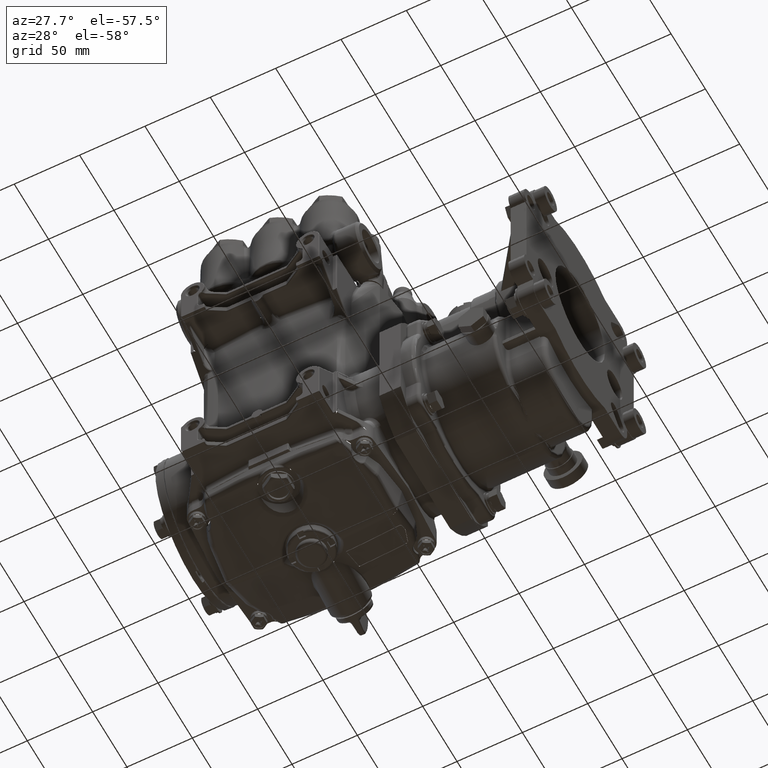
[diagram: clean part render]
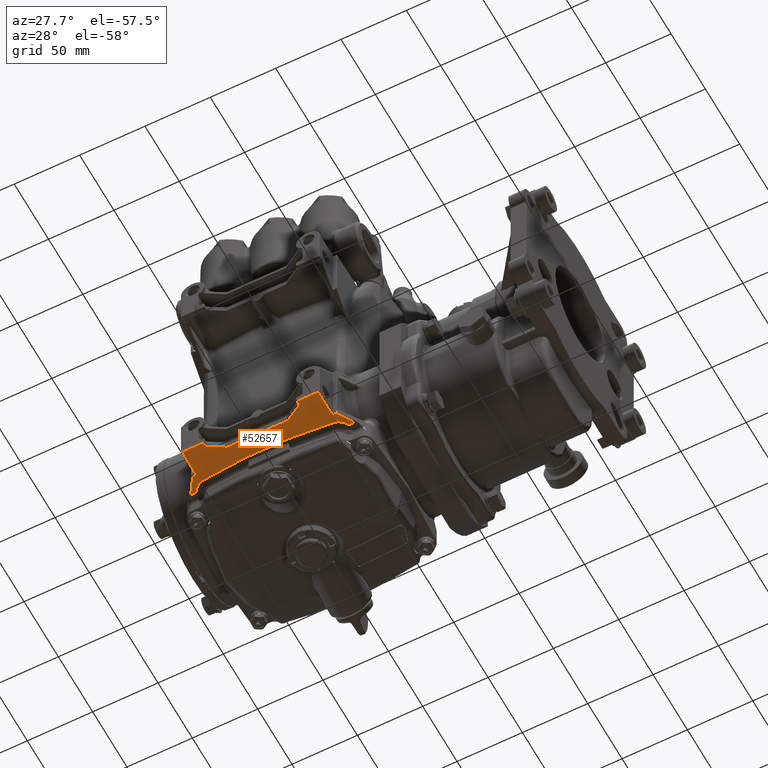
[diagram: same view with one face highlighted and labeled with its STEP entity id]
A machine part, auxiliary view. The second image highlights one B-rep face of the part: STEP entity #52657.
In plain terms, the highlighted planar face has unit normal (0, -0.0175, -0.9998).
Its self-contained STEP definition (entity closure, byte-faithful):
#1050 = CARTESIAN_POINT ( 'NONE',  ( 3.453794319561568571, -2.005590315439255811, -4.981284475665086475 ) ) ;
#1058 = CARTESIAN_POINT ( 'NONE',  ( 7.120569855944082427, -3.086705756910959497, -4.962413535439298862 ) ) ;
#1142 = VERTEX_POINT ( 'NONE', #137472 ) ;
#1510 = CARTESIAN_POINT ( 'NONE',  ( 7.567963976160133832, -1.920975837602786118, -4.982761426869589449 ) ) ;
#1621 = EDGE_CURVE ( 'NONE', #31704, #31085, #125652, .T. ) ;
#2213 = CARTESIAN_POINT ( 'NONE',  ( 7.493451607298180939, -1.966508483827682063, -4.981966651573380034 ) ) ;
#2454 = DIRECTION ( 'NONE',  ( 0.8659924231677005313, -0.4999809586320485000, 0.008727200095794897250 ) ) ;
#2738 = EDGE_LOOP ( 'NONE', ( #74397, #72378, #125890, #50190, #44093, #10461, #134253, #52671, #27687, #108375, #137544, #41514, #44193, #76036, #46778, #41226, #91410, #2954, #118391, #15048, #57501, #136297, #126378, #134147, #48344, #35942 ) ) ;
#2954 = ORIENTED_EDGE ( 'NONE', *, *, #38264, .F. ) ;
#3762 = EDGE_CURVE ( 'NONE', #132759, #36094, #97440, .T. ) ;
#4127 = EDGE_CURVE ( 'NONE', #9948, #97939, #12545, .T. ) ;
#4973 = EDGE_CURVE ( 'NONE', #46856, #12261, #7558, .T. ) ;
#5670 = DIRECTION ( 'NONE',  ( 0.000000000000000000, -0.01745240643728354982, -0.9998476951563912696 ) ) ;
#6439 = EDGE_CURVE ( 'NONE', #65885, #51646, #128410, .T. ) ;
#6710 = VECTOR ( 'NONE', #14174, 39.37007874015748854 ) ;
#7558 = LINE ( 'NONE', #30214, #139305 ) ;
#7722 = EDGE_CURVE ( 'NONE', #102444, #1142, #16268, .T. ) ;
#9948 = VERTEX_POINT ( 'NONE', #110809 ) ;
#10461 = ORIENTED_EDGE ( 'NONE', *, *, #139196, .T. ) ;
#11309 = VECTOR ( 'NONE', #40657, 39.37007874015748143 ) ;
#11804 = CARTESIAN_POINT ( 'NONE',  ( 7.718589746423238473, -1.752793167838006427, -4.985697066290132540 ) ) ;
#12261 = VERTEX_POINT ( 'NONE', #107058 ) ;
#12523 = CARTESIAN_POINT ( 'NONE',  ( 3.453794319561568571, -2.005590315439255811, -4.981284475665086475 ) ) ;
#12545 = LINE ( 'NONE', #99030, #109714 ) ;
#12850 = CARTESIAN_POINT ( 'NONE',  ( 7.674628181425610762, -1.805602641692259258, -4.984775273495182013 ) ) ;
#13256 = VECTOR ( 'NONE', #59065, 39.37007874015748854 ) ;
#14174 = DIRECTION ( 'NONE',  ( -0.8659924231677005313, -0.4999809586320485000, 0.008727200095794897250 ) ) ;
#15004 = CARTESIAN_POINT ( 'NONE',  ( 6.285860003113360683, -2.623057515815317320, -4.970506545591477199 ) ) ;
#15048 = ORIENTED_EDGE ( 'NONE', *, *, #91648, .F. ) ;
#16268 = LINE ( 'NONE', #68051, #29007 ) ;
#17923 = DIRECTION ( 'NONE',  ( -0.5445806858406817552, 0.8385807180961913909, -0.01463748088192038006 ) ) ;
#18007 = EDGE_CURVE ( 'NONE', #137540, #65381, #124017, .T. ) ;
#18195 = CARTESIAN_POINT ( 'NONE',  ( 7.887397008525292463, -1.731559053054866126, -4.986067709142367299 ) ) ;
#18747 = CARTESIAN_POINT ( 'NONE',  ( 3.989019610902507562, -2.983478796853869852, -4.964215368729438360 ) ) ;
#20441 = CARTESIAN_POINT ( 'NONE',  ( 6.764610162083610767, -2.881192331839959930, -4.966000785617533886 ) ) ;
#20739 = EDGE_CURVE ( 'NONE', #97939, #38506, #51281, .T. ) ;
#22388 = VERTEX_POINT ( 'NONE', #110019 ) ;
#23478 = CARTESIAN_POINT ( 'NONE',  ( 7.582667898303953713, -2.200800733339105530, -4.977877065145978719 ) ) ;
#23718 = CARTESIAN_POINT ( 'NONE',  ( 3.273350398666455607, -1.940947689736625570, -4.982412816893856622 ) ) ;
#24396 = VECTOR ( 'NONE', #59861, 39.37007874015748143 ) ;
#25030 = EDGE_CURVE ( 'NONE', #57792, #28453, #97015, .T. ) ;
#26228 = PLANE ( 'NONE',  #75550 ) ;
#27687 = ORIENTED_EDGE ( 'NONE', *, *, #34966, .F. ) ;
#28453 = VERTEX_POINT ( 'NONE', #97982 ) ;
#28645 = VERTEX_POINT ( 'NONE', #89417 ) ;
#29007 = VECTOR ( 'NONE', #111248, 39.37007874015748143 ) ;
#29935 = CARTESIAN_POINT ( 'NONE',  ( 7.451381119096606831, -3.057624093016563904, -4.962921157770796121 ) ) ;
#30214 = CARTESIAN_POINT ( 'NONE',  ( 7.138625910115107054, -1.752793167838005983, -4.985697066290134316 ) ) ;
#31005 = CARTESIAN_POINT ( 'NONE',  ( 3.086845081666117263, -1.752793167838005983, -4.985697066290134316 ) ) ;
#31085 = VERTEX_POINT ( 'NONE', #42574 ) ;
#31378 = EDGE_CURVE ( 'NONE', #31085, #28645, #80467, .T. ) ;
#31704 = VERTEX_POINT ( 'NONE', #34208 ) ;
#32375 = CARTESIAN_POINT ( 'NONE',  ( 7.699451800815148239, -1.762725296132648722, -4.985523700345876996 ) ) ;
#32390 = VERTEX_POINT ( 'NONE', #137431 ) ;
#32972 = CARTESIAN_POINT ( 'NONE',  ( 3.204732694695505479, -1.886595121524495822, -4.983361544501016205 ) ) ;
#33064 = CARTESIAN_POINT ( 'NONE',  ( 7.690840698277646936, -1.774133059369608079, -4.985324577097888898 ) ) ;
#33235 = CARTESIAN_POINT ( 'NONE',  ( 3.674058980981247391, -2.229356728413742772, -4.977378618397861665 ) ) ;
#33840 = CARTESIAN_POINT ( 'NONE',  ( 6.764610162083610767, -2.881192331839959930, -4.966000785617533886 ) ) ;
#33971 = CARTESIAN_POINT ( 'NONE',  ( 7.451531389511750980, -3.036099791279149862, -4.963296865855157947 ) ) ;
#34131 = CARTESIAN_POINT ( 'NONE',  ( 7.477266825087244939, -1.973875665748354491, -4.981838056934616787 ) ) ;
#34208 = CARTESIAN_POINT ( 'NONE',  ( 3.221859657672483834, -2.188239538789849448, -4.978096321612413000 ) ) ;
#34353 = CARTESIAN_POINT ( 'NONE',  ( 3.230990376361888572, -1.910115794424088742, -4.982950989628396776 ) ) ;
#34966 = EDGE_CURVE ( 'NONE', #63593, #36094, #42633, .T. ) ;
#35345 = CARTESIAN_POINT ( 'NONE',  ( 6.060473346791395599, -2.165782871228170592, -4.978488304202773662 ) ) ;
#35942 = ORIENTED_EDGE ( 'NONE', *, *, #18007, .T. ) ;
#36094 = VERTEX_POINT ( 'NONE', #62370 ) ;
#37431 = CARTESIAN_POINT ( 'NONE',  ( 3.230016992792400732, -2.200800733339105530, -4.977877065145978719 ) ) ;
#38264 = EDGE_CURVE ( 'NONE', #113805, #9948, #108140, .T. ) ;
#38506 = VERTEX_POINT ( 'NONE', #33971 ) ;
#40657 = DIRECTION ( 'NONE',  ( 1.000000000000000000, 0.000000000000000000, 0.000000000000000000 ) ) ;
#40692 =( BOUNDED_CURVE ( )  B_SPLINE_CURVE ( 3, ( #92775, #135965, #37431, #47367 ),
 .UNSPECIFIED., .F., .F. ) 
 B_SPLINE_CURVE_WITH_KNOTS ( ( 4, 4 ),
 ( 4.910189787029164421, 5.288347633542811899 ),
 .UNSPECIFIED. ) 
 CURVE ( )  GEOMETRIC_REPRESENTATION_ITEM ( )  RATIONAL_B_SPLINE_CURVE ( ( 1.000000000000000000, 0.9881185147140462144, 0.9881185147140462144, 1.000000000000000000 ) ) 
 REPRESENTATION_ITEM ( '' )  );
#41226 = ORIENTED_EDGE ( 'NONE', *, *, #20739, .F. ) ;
#41514 = ORIENTED_EDGE ( 'NONE', *, *, #121131, .F. ) ;
#42013 = CARTESIAN_POINT ( 'NONE',  ( 4.010635284354345131, -2.902808005291797055, -4.965623482633963803 ) ) ;
#42205 = CARTESIAN_POINT ( 'NONE',  ( 3.335418066009109506, -1.973875665748354491, -4.981838056934617676 ) ) ;
#42561 =( BOUNDED_CURVE ( )  B_SPLINE_CURVE ( 3, ( #120563, #121958, #23478, #46113 ),
 .UNSPECIFIED., .F., .T. ) 
 B_SPLINE_CURVE_WITH_KNOTS ( ( 4, 4 ),
 ( 4.910189787029165309, 5.288347633542813675 ),
 .UNSPECIFIED. ) 
 CURVE ( )  GEOMETRIC_REPRESENTATION_ITEM ( )  RATIONAL_B_SPLINE_CURVE ( ( 1.000000000000000000, 0.9881185147140462144, 0.9881185147140462144, 1.000000000000000000 ) ) 
 REPRESENTATION_ITEM ( '' )  );
#42574 = CARTESIAN_POINT ( 'NONE',  ( 2.939077477946060224, -1.752793167838005983, -4.985697066290134316 ) ) ;
#42633 = B_SPLINE_CURVE_WITH_KNOTS ( 'NONE', 3,
 ( #66081, #12850, #99344, #78799, #55416, #98661, #1510, #46845, #131223, #2213, #34131, #68149, #111350, #45451 ),
 .UNSPECIFIED., .F., .F.,
 ( 4, 2, 2, 2, 2, 2, 4 ),
 ( 0.000000000000000000, 0.002659535891228527373, 0.003989303836842809925, 0.005319071782457092043, 0.006648839728071375028, 0.007978607673685658014, 0.01063814356491422225 ),
 .UNSPECIFIED. ) ;
#43621 = CARTESIAN_POINT ( 'NONE',  ( 3.138056709670745015, -1.805602641692259480, -4.984775273495183789 ) ) ;
#44093 = ORIENTED_EDGE ( 'NONE', *, *, #31378, .T. ) ;
#44193 = ORIENTED_EDGE ( 'NONE', *, *, #117993, .F. ) ;
#44985 = CARTESIAN_POINT ( 'NONE',  ( 3.319233283798171730, -1.966508483827681619, -4.981966651573380034 ) ) ;
#45161 = LINE ( 'NONE', #54447, #125066 ) ;
#45451 = CARTESIAN_POINT ( 'NONE',  ( 7.358890571534785430, -2.005590315439255811, -4.981284475665086475 ) ) ;
#46070 = LINE ( 'NONE', #101389, #6710 ) ;
#46113 = CARTESIAN_POINT ( 'NONE',  ( 7.590825233423871055, -2.188239538789849448, -4.978096321612413000 ) ) ;
#46778 = ORIENTED_EDGE ( 'NONE', *, *, #73715, .F. ) ;
#46845 = CARTESIAN_POINT ( 'NONE',  ( 7.539334492429897949, -1.940947689736626014, -4.982412816893856622 ) ) ;
#46856 = VERTEX_POINT ( 'NONE', #71456 ) ;
#47115 = VECTOR ( 'NONE', #68771, 39.37007874015748143 ) ;
#47304 = EDGE_CURVE ( 'NONE', #12261, #63593, #62137, .T. ) ;
#47367 = CARTESIAN_POINT ( 'NONE',  ( 3.221859657672483834, -2.188239538789849448, -4.978096321612413000 ) ) ;
#47486 = VECTOR ( 'NONE', #119704, 39.37007874015748143 ) ;
#48344 = ORIENTED_EDGE ( 'NONE', *, *, #87304, .T. ) ;
#48919 = VECTOR ( 'NONE', #2454, 39.37007874015748854 ) ;
#49673 = DIRECTION ( 'NONE',  ( -0.006980197070013981209, 0.9998233369945037641, -0.01745198126398627217 ) ) ;
#50190 = ORIENTED_EDGE ( 'NONE', *, *, #1621, .T. ) ;
#51281 = LINE ( 'NONE', #64030, #11309 ) ;
#51646 = VERTEX_POINT ( 'NONE', #18747 ) ;
#52657 = ADVANCED_FACE ( 'NONE', ( #126136 ), #26228, .T. ) ;
#52671 = ORIENTED_EDGE ( 'NONE', *, *, #3762, .T. ) ;
#52717 = EDGE_CURVE ( 'NONE', #32390, #57792, #80841, .T. ) ;
#52869 = CARTESIAN_POINT ( 'NONE',  ( 3.192286484047189177, -1.873986368508073763, -4.983581631103579213 ) ) ;
#54367 = CARTESIAN_POINT ( 'NONE',  ( 7.692500673501383446, -1.770910936152490178, -4.985380819467850166 ) ) ;
#54447 = CARTESIAN_POINT ( 'NONE',  ( 3.989019610902507118, -3.055441279341408745, -4.962959258925221384 ) ) ;
#54589 = CARTESIAN_POINT ( 'NONE',  ( 4.752211544304961066, -2.165782871228170592, -4.978488304202773662 ) ) ;
#54953 = CARTESIAN_POINT ( 'NONE',  ( 3.288249407906520094, -1.950059402805521369, -4.982253771350631411 ) ) ;
#55045 = CARTESIAN_POINT ( 'NONE',  ( 7.702272196293225015, -1.760424204763416878, -4.985563866045133352 ) ) ;
#55416 = CARTESIAN_POINT ( 'NONE',  ( 7.607952196400849409, -1.886595121524495156, -4.983361544501014428 ) ) ;
#55634 = CARTESIAN_POINT ( 'NONE',  ( 3.418656256372481828, -2.001255147944194235, -4.981360146295187086 ) ) ;
#55798 = DIRECTION ( 'NONE',  ( -2.312612358918789898E-15, -0.9998476951563912696, 0.01745240643728354982 ) ) ;
#56355 = CARTESIAN_POINT ( 'NONE',  ( 4.467769769872757202, -2.638881287021879629, -4.970230340637658450 ) ) ;
#57128 = CARTESIAN_POINT ( 'NONE',  ( 7.725839809430237182, -1.752793167838005983, -4.985697066290134316 ) ) ;
#57501 = ORIENTED_EDGE ( 'NONE', *, *, #52717, .T. ) ;
#57791 = VECTOR ( 'NONE', #49673, 39.37007874015748854 ) ;
#57792 = VERTEX_POINT ( 'NONE', #99085 ) ;
#59065 = DIRECTION ( 'NONE',  ( 0.006980197070013981209, 0.9998233369945037641, -0.01745198126398627217 ) ) ;
#59861 = DIRECTION ( 'NONE',  ( 1.000000000000000000, -0.000000000000000000, -0.000000000000000000 ) ) ;
#61682 = EDGE_CURVE ( 'NONE', #22388, #113805, #132828, .T. ) ;
#62137 = B_SPLINE_CURVE_WITH_KNOTS ( 'NONE', 3,
 ( #57128, #11804, #89742, #55045, #32375, #75656, #54367, #33064 ),
 .UNSPECIFIED., .F., .F.,
 ( 4, 2, 2, 4 ),
 ( 0.000000000000000000, 0.0005519795214361253657, 0.0008279692821541821939, 0.001103959042872239022 ),
 .UNSPECIFIED. ) ;
#62370 = CARTESIAN_POINT ( 'NONE',  ( 7.358890571534785430, -2.005590315439255811, -4.981284475665086475 ) ) ;
#63593 = VERTEX_POINT ( 'NONE', #126540 ) ;
#63853 = VERTEX_POINT ( 'NONE', #66905 ) ;
#64030 = CARTESIAN_POINT ( 'NONE',  ( 7.138625910115107054, -3.036099791279149862, -4.963296865855157947 ) ) ;
#65381 = VERTEX_POINT ( 'NONE', #67557 ) ;
#65622 = CARTESIAN_POINT ( 'NONE',  ( 3.244720914936221057, -1.920975837602785230, -4.982761426869589449 ) ) ;
#65885 = VERTEX_POINT ( 'NONE', #134507 ) ;
#66081 = CARTESIAN_POINT ( 'NONE',  ( 7.690840698277646936, -1.774133059369608079, -4.985324577097888898 ) ) ;
#66598 =( BOUNDED_CURVE ( )  B_SPLINE_CURVE ( 3, ( #15004, #70335, #113561, #139001 ),
 .UNSPECIFIED., .F., .F. ) 
 B_SPLINE_CURVE_WITH_KNOTS ( ( 4, 4 ),
 ( 3.141592653589793116, 3.665191429188092265 ),
 .UNSPECIFIED. ) 
 CURVE ( )  GEOMETRIC_REPRESENTATION_ITEM ( )  RATIONAL_B_SPLINE_CURVE ( ( 1.000000000000000000, 0.9772838841927120601, 0.9772838841927120601, 1.000000000000000000 ) ) 
 REPRESENTATION_ITEM ( '' )  );
#66905 = CARTESIAN_POINT ( 'NONE',  ( 3.238611297648226639, -2.229356728413742772, -4.977378618397861665 ) ) ;
#67557 = CARTESIAN_POINT ( 'NONE',  ( 3.361153501584603465, -3.036099791279149862, -4.963296865855157947 ) ) ;
#67897 = VERTEX_POINT ( 'NONE', #131512 ) ;
#68051 = CARTESIAN_POINT ( 'NONE',  ( 7.138625910115107054, -2.229356728413742772, -4.977378618397861665 ) ) ;
#68149 = CARTESIAN_POINT ( 'NONE',  ( 7.428006368244970403, -1.992753754752980111, -4.981508538665321062 ) ) ;
#68771 = DIRECTION ( 'NONE',  ( -1.000000000000000000, 0.000000000000000000, 0.000000000000000000 ) ) ;
#70335 = CARTESIAN_POINT ( 'NONE',  ( 6.306713158168825828, -2.623057515815317764, -4.970506545591477199 ) ) ;
#70919 = CARTESIAN_POINT ( 'NONE',  ( 3.989019610902507118, -3.036099791279149862, -4.963296865855157947 ) ) ;
#71456 = CARTESIAN_POINT ( 'NONE',  ( 7.873607413150293333, -1.752793167838005983, -4.985697066290134316 ) ) ;
#72378 = ORIENTED_EDGE ( 'NONE', *, *, #126455, .T. ) ;
#72401 = B_SPLINE_CURVE_WITH_KNOTS ( 'NONE', 3,
 ( #31005, #83545, #92794, #84248, #138757, #135983, #104108, #126736 ),
 .UNSPECIFIED., .F., .F.,
 ( 4, 2, 2, 4 ),
 ( 0.000000000000000000, 0.0005519795214361028143, 0.0008279692821541662561, 0.001103959042872229915 ),
 .UNSPECIFIED. ) ;
#73264 = CARTESIAN_POINT ( 'NONE',  ( 3.989019610902507562, -2.940247449950195602, -4.964969974696575861 ) ) ;
#73715 = EDGE_CURVE ( 'NONE', #38506, #102444, #91702, .T. ) ;
#74382 = EDGE_CURVE ( 'NONE', #63853, #31704, #40692, .T. ) ;
#74397 = ORIENTED_EDGE ( 'NONE', *, *, #132158, .T. ) ;
#75550 = AXIS2_PLACEMENT_3D ( 'NONE', #82266, #5670, #125439 ) ;
#75656 = CARTESIAN_POINT ( 'NONE',  ( 7.694559030967798030, -1.767988070189766336, -4.985431838283006734 ) ) ;
#76036 = ORIENTED_EDGE ( 'NONE', *, *, #7722, .F. ) ;
#78415 = VERTEX_POINT ( 'NONE', #98999 ) ;
#78799 = CARTESIAN_POINT ( 'NONE',  ( 7.620398407049156830, -1.873986368508073097, -4.983581631103578324 ) ) ;
#79983 = VECTOR ( 'NONE', #138859, 39.37007874015748143 ) ;
#80467 = LINE ( 'NONE', #91810, #24396 ) ;
#80841 = LINE ( 'NONE', #116881, #79983 ) ;
#82266 = CARTESIAN_POINT ( 'NONE',  ( 3.674058980981247391, -3.055441279341408300, -4.962959258925221384 ) ) ;
#83545 = CARTESIAN_POINT ( 'NONE',  ( 3.094095144673112863, -1.752793167838006649, -4.985697066290136092 ) ) ;
#84248 = CARTESIAN_POINT ( 'NONE',  ( 3.110412694803132094, -1.760424204763416212, -4.985563866045132464 ) ) ;
#85314 = CARTESIAN_POINT ( 'NONE',  ( 3.989019610902507562, -2.983478796853869852, -4.964215368729438360 ) ) ;
#86908 = CARTESIAN_POINT ( 'NONE',  ( 3.157738147901087533, -1.834466388222888655, -4.984271454925418787 ) ) ;
#87066 = CARTESIAN_POINT ( 'NONE',  ( 6.802049606742009757, -2.902808005291797055, -4.965623482633963803 ) ) ;
#87304 = EDGE_CURVE ( 'NONE', #51646, #137540, #45161, .T. ) ;
#87521 = EDGE_CURVE ( 'NONE', #78415, #132759, #126880, .T. ) ;
#88456 = CARTESIAN_POINT ( 'NONE',  ( 6.823665280193846883, -2.983478796853869852, -4.964215368729438360 ) ) ;
#89417 = CARTESIAN_POINT ( 'NONE',  ( 3.086845081666117263, -1.752793167838005983, -4.985697066290134316 ) ) ;
#89742 = CARTESIAN_POINT ( 'NONE',  ( 7.711429679364774969, -1.754833442419670986, -4.985661453164841106 ) ) ;
#91111 = CARTESIAN_POINT ( 'NONE',  ( 4.485829131899845557, -2.628454709494147501, -4.970412337225383226 ) ) ;
#91410 = ORIENTED_EDGE ( 'NONE', *, *, #4127, .F. ) ;
#91648 = EDGE_CURVE ( 'NONE', #32390, #22388, #66598, .T. ) ;
#91702 = LINE ( 'NONE', #29935, #13256 ) ;
#91810 = CARTESIAN_POINT ( 'NONE',  ( 3.674058980981247391, -1.752793167838005983, -4.985697066290134316 ) ) ;
#92775 = CARTESIAN_POINT ( 'NONE',  ( 3.238611297648226639, -2.229356728413742772, -4.977378618397861665 ) ) ;
#92794 = CARTESIAN_POINT ( 'NONE',  ( 3.101255211731578143, -1.754833442419670764, -4.985661453164841106 ) ) ;
#92952 = LINE ( 'NONE', #104946, #57791 ) ;
#94028 = DIRECTION ( 'NONE',  ( 0.5445806858406817552, 0.8385807180961913909, -0.01463748088192038006 ) ) ;
#97015 =( BOUNDED_CURVE ( )  B_SPLINE_CURVE ( 3, ( #110193, #121515, #91111, #56355 ),
 .UNSPECIFIED., .F., .T. ) 
 B_SPLINE_CURVE_WITH_KNOTS ( ( 4, 4 ),
 ( 3.141592653589793116, 3.665191429188092265 ),
 .UNSPECIFIED. ) 
 CURVE ( )  GEOMETRIC_REPRESENTATION_ITEM ( )  RATIONAL_B_SPLINE_CURVE ( ( 1.000000000000000000, 0.9772838841927120601, 0.9772838841927120601, 1.000000000000000000 ) ) 
 REPRESENTATION_ITEM ( '' )  );
#97440 =( BOUNDED_CURVE ( )  B_SPLINE_CURVE ( 3, ( #132444, #54589, #35345, #99183 ),
 .UNSPECIFIED., .F., .F. ) 
 B_SPLINE_CURVE_WITH_KNOTS ( ( 4, 4 ),
 ( 3.018837728285270305, 3.264347578894316371 ),
 .UNSPECIFIED. ) 
 CURVE ( )  GEOMETRIC_REPRESENTATION_ITEM ( )  RATIONAL_B_SPLINE_CURVE ( ( 1.000000000000000000, 0.9949833803782812680, 0.9949833803782812680, 1.000000000000000000 ) ) 
 REPRESENTATION_ITEM ( '' )  );
#97939 = VERTEX_POINT ( 'NONE', #119089 ) ;
#97982 = CARTESIAN_POINT ( 'NONE',  ( 4.467769769872757202, -2.638881287021879629, -4.970230340637658450 ) ) ;
#98207 = CARTESIAN_POINT ( 'NONE',  ( 3.384678522851381821, -1.992753754752980555, -4.981508538665321950 ) ) ;
#98661 = CARTESIAN_POINT ( 'NONE',  ( 7.581694514734466317, -1.910115794424087854, -4.982950989628395888 ) ) ;
#98999 = CARTESIAN_POINT ( 'NONE',  ( 3.121844192818706620, -1.774133059369608079, -4.985324577097888898 ) ) ;
#99030 = CARTESIAN_POINT ( 'NONE',  ( 6.823665280193846883, -3.055441279341408745, -4.962959258925221384 ) ) ;
#99085 = CARTESIAN_POINT ( 'NONE',  ( 4.526824887982994206, -2.623057515815317320, -4.970506545591477199 ) ) ;
#99135 = LINE ( 'NONE', #33235, #47486 ) ;
#99183 = CARTESIAN_POINT ( 'NONE',  ( 7.358890571534785430, -2.005590315439255811, -4.981284475665086475 ) ) ;
#99344 = CARTESIAN_POINT ( 'NONE',  ( 7.654946743195265135, -1.834466388222889544, -4.984271454925418787 ) ) ;
#99743 = DIRECTION ( 'NONE',  ( 2.312612358918789898E-15, -0.9998476951563912696, 0.01745240643728354982 ) ) ;
#100665 = CARTESIAN_POINT ( 'NONE',  ( 3.674058980981247391, -3.036099791279149862, -4.963296865855157947 ) ) ;
#101389 = CARTESIAN_POINT ( 'NONE',  ( 3.692115035152272462, -3.086705756910959497, -4.962413535439298862 ) ) ;
#102444 = VERTEX_POINT ( 'NONE', #110435 ) ;
#104108 = CARTESIAN_POINT ( 'NONE',  ( 3.120184217594970999, -1.770910936152490178, -4.985380819467850166 ) ) ;
#104946 = CARTESIAN_POINT ( 'NONE',  ( 3.361303771999747614, -3.057624093016563904, -4.962921157770796121 ) ) ;
#105884 = VECTOR ( 'NONE', #94028, 39.37007874015748854 ) ;
#107058 = CARTESIAN_POINT ( 'NONE',  ( 7.725839809430237182, -1.752793167838005983, -4.985697066290134316 ) ) ;
#108140 =( BOUNDED_CURVE ( )  B_SPLINE_CURVE ( 3, ( #33840, #87066, #109655, #88456 ),
 .UNSPECIFIED., .F., .F. ) 
 B_SPLINE_CURVE_WITH_KNOTS ( ( 4, 4 ),
 ( 3.665191429188092265, 4.712388980384689674 ),
 .UNSPECIFIED. ) 
 CURVE ( )  GEOMETRIC_REPRESENTATION_ITEM ( )  RATIONAL_B_SPLINE_CURVE ( ( 1.000000000000000000, 0.9106836025229592124, 0.9106836025229592124, 1.000000000000000000 ) ) 
 REPRESENTATION_ITEM ( '' )  );
#108375 = ORIENTED_EDGE ( 'NONE', *, *, #47304, .F. ) ;
#109655 = CARTESIAN_POINT ( 'NONE',  ( 6.823665280193846883, -2.940247449950195602, -4.964969974696575861 ) ) ;
#109714 = VECTOR ( 'NONE', #99743, 39.37007874015748143 ) ;
#110019 = CARTESIAN_POINT ( 'NONE',  ( 6.344915121223596799, -2.638881287021879629, -4.970230340637658450 ) ) ;
#110193 = CARTESIAN_POINT ( 'NONE',  ( 4.526824887982994206, -2.623057515815317320, -4.970506545591477199 ) ) ;
#110435 = CARTESIAN_POINT ( 'NONE',  ( 7.457163610080431937, -2.229356728413742772, -4.977378618397861665 ) ) ;
#110809 = CARTESIAN_POINT ( 'NONE',  ( 6.823665280193846883, -2.983478796853869852, -4.964215368729438360 ) ) ;
#111248 = DIRECTION ( 'NONE',  ( 1.000000000000000000, 0.000000000000000000, 0.000000000000000000 ) ) ;
#111350 = CARTESIAN_POINT ( 'NONE',  ( 7.394028634723868620, -2.001255147944194235, -4.981360146295186198 ) ) ;
#113561 = CARTESIAN_POINT ( 'NONE',  ( 6.326855759196508444, -2.628454709494147501, -4.970412337225383226 ) ) ;
#113805 = VERTEX_POINT ( 'NONE', #20441 ) ;
#115001 = CARTESIAN_POINT ( 'NONE',  ( 2.925287882571061537, -1.731559053054866126, -4.986067709142367299 ) ) ;
#115773 = CARTESIAN_POINT ( 'NONE',  ( 4.048074729012744122, -2.881192331839959930, -4.966000785617533886 ) ) ;
#116881 = CARTESIAN_POINT ( 'NONE',  ( 3.674058980981247391, -2.623057515815317320, -4.970506545591477199 ) ) ;
#117993 = EDGE_CURVE ( 'NONE', #1142, #67897, #42561, .T. ) ;
#118211 = VECTOR ( 'NONE', #17923, 39.37007874015748854 ) ;
#118391 = ORIENTED_EDGE ( 'NONE', *, *, #61682, .F. ) ;
#119089 = CARTESIAN_POINT ( 'NONE',  ( 6.823665280193846883, -3.036099791279149862, -4.963296865855157947 ) ) ;
#119437 = CARTESIAN_POINT ( 'NONE',  ( 3.121844192818706620, -1.774133059369608079, -4.985324577097888898 ) ) ;
#119704 = DIRECTION ( 'NONE',  ( -1.000000000000000000, 0.000000000000000000, 0.000000000000000000 ) ) ;
#120563 = CARTESIAN_POINT ( 'NONE',  ( 7.574073593448127362, -2.229356728413742772, -4.977378618397861665 ) ) ;
#121131 = EDGE_CURVE ( 'NONE', #67897, #46856, #126596, .T. ) ;
#121515 = CARTESIAN_POINT ( 'NONE',  ( 4.505971732927529949, -2.623057515815317764, -4.970506545591477199 ) ) ;
#121958 = CARTESIAN_POINT ( 'NONE',  ( 7.577016875770961946, -2.214671265740370654, -4.977634954102326148 ) ) ;
#124017 = LINE ( 'NONE', #100665, #47115 ) ;
#125066 = VECTOR ( 'NONE', #55798, 39.37007874015748143 ) ;
#125439 = DIRECTION ( 'NONE',  ( 0.000000000000000000, 0.9998476951563912696, -0.01745240643728354982 ) ) ;
#125652 = LINE ( 'NONE', #115001, #118211 ) ;
#125890 = ORIENTED_EDGE ( 'NONE', *, *, #74382, .T. ) ;
#126136 = FACE_OUTER_BOUND ( 'NONE', #2738, .T. ) ;
#126378 = ORIENTED_EDGE ( 'NONE', *, *, #139482, .T. ) ;
#126455 = EDGE_CURVE ( 'NONE', #135777, #63853, #99135, .T. ) ;
#126540 = CARTESIAN_POINT ( 'NONE',  ( 7.690840698277646936, -1.774133059369608079, -4.985324577097888898 ) ) ;
#126596 = LINE ( 'NONE', #18195, #105884 ) ;
#126736 = CARTESIAN_POINT ( 'NONE',  ( 3.121844192818706620, -1.774133059369608079, -4.985324577097888898 ) ) ;
#126880 = B_SPLINE_CURVE_WITH_KNOTS ( 'NONE', 3,
 ( #119437, #43621, #86908, #52869, #32972, #34353, #65622, #23718, #54953, #44985, #42205, #98207, #55634, #1050 ),
 .UNSPECIFIED., .F., .F.,
 ( 4, 2, 2, 2, 2, 2, 4 ),
 ( 0.000000000000000000, 0.002659535891228577247, 0.003989303836842844619, 0.005319071782457111125, 0.006648839728071377631, 0.007978607673685644136, 0.01063814356491421531 ),
 .UNSPECIFIED. ) ;
#127306 = DIRECTION ( 'NONE',  ( -1.000000000000000000, -0.000000000000000000, -0.000000000000000000 ) ) ;
#128410 =( BOUNDED_CURVE ( )  B_SPLINE_CURVE ( 3, ( #115773, #42013, #73264, #85314 ),
 .UNSPECIFIED., .F., .F. ) 
 B_SPLINE_CURVE_WITH_KNOTS ( ( 4, 4 ),
 ( 3.665191429188092265, 4.712388980384689674 ),
 .UNSPECIFIED. ) 
 CURVE ( )  GEOMETRIC_REPRESENTATION_ITEM ( )  RATIONAL_B_SPLINE_CURVE ( ( 1.000000000000000000, 0.9106836025229592124, 0.9106836025229592124, 1.000000000000000000 ) ) 
 REPRESENTATION_ITEM ( '' )  );
#130483 = CARTESIAN_POINT ( 'NONE',  ( 3.355521281015922508, -2.229356728413742772, -4.977378618397861665 ) ) ;
#131223 = CARTESIAN_POINT ( 'NONE',  ( 7.524435483189833462, -1.950059402805521369, -4.982253771350631411 ) ) ;
#131512 = CARTESIAN_POINT ( 'NONE',  ( 7.590825233423871055, -2.188239538789849448, -4.978096321612413000 ) ) ;
#132158 = EDGE_CURVE ( 'NONE', #65381, #135777, #92952, .T. ) ;
#132444 = CARTESIAN_POINT ( 'NONE',  ( 3.453794319561568571, -2.005590315439255811, -4.981284475665086475 ) ) ;
#132759 = VERTEX_POINT ( 'NONE', #12523 ) ;
#132828 = LINE ( 'NONE', #1058, #48919 ) ;
#134147 = ORIENTED_EDGE ( 'NONE', *, *, #6439, .T. ) ;
#134253 = ORIENTED_EDGE ( 'NONE', *, *, #87521, .T. ) ;
#134507 = CARTESIAN_POINT ( 'NONE',  ( 4.048074729012744122, -2.881192331839959930, -4.966000785617533886 ) ) ;
#135777 = VERTEX_POINT ( 'NONE', #130483 ) ;
#135965 = CARTESIAN_POINT ( 'NONE',  ( 3.235668015325391611, -2.214671265740370654, -4.977634954102326148 ) ) ;
#135983 = CARTESIAN_POINT ( 'NONE',  ( 3.118125860128556859, -1.767988070189765670, -4.985431838283006734 ) ) ;
#136297 = ORIENTED_EDGE ( 'NONE', *, *, #25030, .T. ) ;
#137431 = CARTESIAN_POINT ( 'NONE',  ( 6.285860003113360683, -2.623057515815317320, -4.970506545591477199 ) ) ;
#137472 = CARTESIAN_POINT ( 'NONE',  ( 7.574073593448127362, -2.229356728413742772, -4.977378618397861665 ) ) ;
#137540 = VERTEX_POINT ( 'NONE', #70919 ) ;
#137544 = ORIENTED_EDGE ( 'NONE', *, *, #4973, .F. ) ;
#138757 = CARTESIAN_POINT ( 'NONE',  ( 3.113233090281206206, -1.762725296132648500, -4.985523700345876996 ) ) ;
#138859 = DIRECTION ( 'NONE',  ( -1.000000000000000000, 0.000000000000000000, 0.000000000000000000 ) ) ;
#139001 = CARTESIAN_POINT ( 'NONE',  ( 6.344915121223596799, -2.638881287021879629, -4.970230340637658450 ) ) ;
#139196 = EDGE_CURVE ( 'NONE', #28645, #78415, #72401, .T. ) ;
#139305 = VECTOR ( 'NONE', #127306, 39.37007874015748143 ) ;
#139482 = EDGE_CURVE ( 'NONE', #28453, #65885, #46070, .T. ) ;